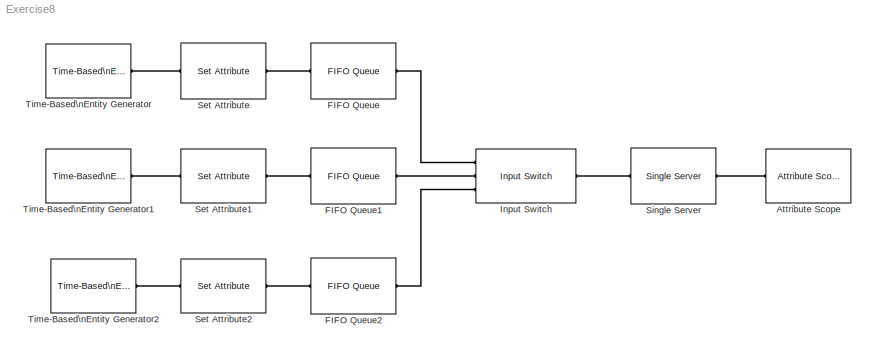
MODEL Exercise8
KIND model
BLOCK [Reference] Attribute Scope  REF=simeventssink1/Attribute Scope
  AttributeNameX = Count
  AttributeNameY = Type
  AxisGrid = on
  AxisLegend = off
  AxisZoom = off
  DataPointsLimit = 10000
  DataStoreOption = Limited
  EnableEntityOutport = off
  FigurePosition = des_figposition([5 25 25 25])
  FunctionWithSeparateData = off
  InputType = Attribute
  LineColors = b
  LineMarkers = o
  LineStyles = -
  NumInputs = 1
  OpenScopeAtSimStart = on
  PlotType = Stem
  Ports = [0, 0, 0, 0, 0, 1]
  Priority = 1
  RTWMemSecDataConstants = Inherit from model
  RTWMemSecDataInternal = Inherit from model
  RTWMemSecDataParameters = Inherit from model
  RTWMemSecFuncExecute = Inherit from model
  RTWMemSecFuncInitTerm = Inherit from model
  ShowCountPlotted = off
  ShowPortLabels = FromPortIcon
  ShowToolbar = on
  SourceBlock = simeventssink1/Attribute Scope
  SourceType = Attribute Scope
  StatNumberArrived = Off
  SystemSampleTime = -1
  Title = Types of Entities Departing from Server
  UserData = DataTag0
  UserDataPersistent = on
  XInputOptionEntity = Event time
  XInputOptionSignal = Event time
  XLabel = Time
  XLimitExceededOption = Stretch axis limits
  XMax = 10
  XMin = 0
  YLabel = Type
  YLimitExceededOption = Stretch axis limits
  YMax = 10
  YMin = 0
BLOCK [Reference] FIFO Queue  REF=simeventsqueue1/FIFO Queue
  Capacity = 25
  EnableTOPort = off
  FunctionWithSeparateData = off
  Ports = [0, 0, 0, 0, 0, 1, 1]
  Priority = 1
  RTWMemSecDataConstants = Inherit from model
  RTWMemSecDataInternal = Inherit from model
  RTWMemSecDataParameters = Inherit from model
  RTWMemSecFuncExecute = Inherit from model
  RTWMemSecFuncInitTerm = Inherit from model
  ShowPortLabels = FromPortIcon
  SourceBlock = simeventsqueue1/FIFO Queue
  SourceType = FIFO Queue
  StatAverageQueueLength = Off
  StatAverageWait = Off
  StatNumberDeparted = Off
  StatNumberInBlock = Off
  StatNumberTimedout = Off
  StatPendingEntity = Off
  SystemSampleTime = -1
  UserData = DataTag1
  UserDataPersistent = on
BLOCK [Reference] FIFO Queue1  REF=simeventsqueue1/FIFO Queue
  Capacity = 25
  EnableTOPort = off
  FunctionWithSeparateData = off
  Ports = [0, 0, 0, 0, 0, 1, 1]
  Priority = 1
  RTWMemSecDataConstants = Inherit from model
  RTWMemSecDataInternal = Inherit from model
  RTWMemSecDataParameters = Inherit from model
  RTWMemSecFuncExecute = Inherit from model
  RTWMemSecFuncInitTerm = Inherit from model
  ShowPortLabels = FromPortIcon
  SourceBlock = simeventsqueue1/FIFO Queue
  SourceType = FIFO Queue
  StatAverageQueueLength = Off
  StatAverageWait = Off
  StatNumberDeparted = Off
  StatNumberInBlock = Off
  StatNumberTimedout = Off
  StatPendingEntity = Off
  SystemSampleTime = -1
  UserData = DataTag2
  UserDataPersistent = on
BLOCK [Reference] FIFO Queue2  REF=simeventsqueue1/FIFO Queue
  Capacity = 25
  EnableTOPort = off
  FunctionWithSeparateData = off
  Ports = [0, 0, 0, 0, 0, 1, 1]
  Priority = 1
  RTWMemSecDataConstants = Inherit from model
  RTWMemSecDataInternal = Inherit from model
  RTWMemSecDataParameters = Inherit from model
  RTWMemSecFuncExecute = Inherit from model
  RTWMemSecFuncInitTerm = Inherit from model
  ShowPortLabels = FromPortIcon
  SourceBlock = simeventsqueue1/FIFO Queue
  SourceType = FIFO Queue
  StatAverageQueueLength = Off
  StatAverageWait = Off
  StatNumberDeparted = Off
  StatNumberInBlock = Off
  StatNumberTimedout = Off
  StatPendingEntity = Off
  SystemSampleTime = -1
  UserData = DataTag3
  UserDataPersistent = on
BLOCK [Reference] Input Switch  REF=simeventsrouting1/Input Switch
  EvaluatedNumPorts = 3
  FunctionWithSeparateData = off
  InitialSeed = 23453
  NumberInputPorts = 3
  Ports = [0, 0, 0, 0, 0, 3, 1]
  Priority = 1
  PriorityInputSwitchSelectPort = 4000
  RTWMemSecDataConstants = Inherit from model
  RTWMemSecDataInternal = Inherit from model
  RTWMemSecDataParameters = Inherit from model
  RTWMemSecFuncExecute = Inherit from model
  RTWMemSecFuncInitTerm = Inherit from model
  ShowPortLabels = FromPortIcon
  SourceBlock = simeventsrouting1/Input Switch
  SourceType = Input Switch
  SpecifyEventPriority = off
  StatLastArrivalPort = Off
  StatNumberDeparted = Off
  SwitchingCriterion = Round robin
  SystemSampleTime = -1
  UserData = DataTag4
  UserDataPersistent = on
BLOCK [Reference] Set Attribute  REF=simeventsattributes2/Set Attribute
  AttributeCreate = on
  AttributeFrom = Dialog
  AttributeName = Type
  AttributeTreatAsVector = 1
  AttributeValue = 1
  DialogController = des_ddg_create
  DialogControllerArgs = DataTag6
  EvaluatedAttributeValue = {1}
  FunctionWithSeparateData = off
  Ports = [0, 0, 0, 0, 0, 1, 1]
  Priority = 1
  RTWMemSecDataConstants = Inherit from model
  RTWMemSecDataInternal = Inherit from model
  RTWMemSecDataParameters = Inherit from model
  RTWMemSecFuncExecute = Inherit from model
  RTWMemSecFuncInitTerm = Inherit from model
  ShowPortLabels = FromPortIcon
  SourceBlock = simeventsattributes2/Set Attribute
  SourceType = Set Attribute
  StatNumberDeparted = Off
  SystemSampleTime = -1
  UserData = DataTag5
  UserDataPersistent = on
BLOCK [Reference] Set Attribute1  REF=simeventsattributes2/Set Attribute
  AttributeCreate = on
  AttributeFrom = Dialog
  AttributeName = Type
  AttributeTreatAsVector = 1
  AttributeValue = 2
  DialogController = des_ddg_create
  DialogControllerArgs = DataTag8
  EvaluatedAttributeValue = {2}
  FunctionWithSeparateData = off
  Ports = [0, 0, 0, 0, 0, 1, 1]
  Priority = 1
  RTWMemSecDataConstants = Inherit from model
  RTWMemSecDataInternal = Inherit from model
  RTWMemSecDataParameters = Inherit from model
  RTWMemSecFuncExecute = Inherit from model
  RTWMemSecFuncInitTerm = Inherit from model
  ShowPortLabels = FromPortIcon
  SourceBlock = simeventsattributes2/Set Attribute
  SourceType = Set Attribute
  StatNumberDeparted = Off
  SystemSampleTime = -1
  UserData = DataTag7
  UserDataPersistent = on
BLOCK [Reference] Set Attribute2  REF=simeventsattributes2/Set Attribute
  AttributeCreate = on
  AttributeFrom = Dialog
  AttributeName = Type
  AttributeTreatAsVector = 1
  AttributeValue = 3
  DialogController = des_ddg_create
  DialogControllerArgs = DataTag10
  EvaluatedAttributeValue = {3}
  FunctionWithSeparateData = off
  Ports = [0, 0, 0, 0, 0, 1, 1]
  Priority = 1
  RTWMemSecDataConstants = Inherit from model
  RTWMemSecDataInternal = Inherit from model
  RTWMemSecDataParameters = Inherit from model
  RTWMemSecFuncExecute = Inherit from model
  RTWMemSecFuncInitTerm = Inherit from model
  ShowPortLabels = FromPortIcon
  SourceBlock = simeventsattributes2/Set Attribute
  SourceType = Set Attribute
  StatNumberDeparted = Off
  SystemSampleTime = -1
  UserData = DataTag9
  UserDataPersistent = on
BLOCK [Reference] Single Server  REF=simeventsserver1/Single Server
  AttributeName = ServiceTime
  CreateAttribute = on
  EnableTOPort = off
  FunctionWithSeparateData = off
  PermitPreemption = off
  Ports = [0, 0, 0, 0, 0, 1, 1]
  Priority = 1
  PriorityServiceCompletion = 500
  RTWMemSecDataConstants = Inherit from model
  RTWMemSecDataInternal = Inherit from model
  RTWMemSecDataParameters = Inherit from model
  RTWMemSecFuncExecute = Inherit from model
  RTWMemSecFuncInitTerm = Inherit from model
  ResidualAttributeName = ResidualServiceTime
  ServiceTime = 1
  ServiceTimeFrom = Dialog
  ShowPortLabels = FromPortIcon
  SortingAttributeName = PriorityAttributeName
  SortingDirection = Ascending
  SourceBlock = simeventsserver1/Single Server
  SourceType = Single Server
  StatAverageWait = Off
  StatNumberDeparted = Off
  StatNumberInBlock = Off
  StatNumberPreempted = Off
  StatNumberTimedout = Off
  StatPendingEntity = Off
  StatUtilization = Off
  SystemSampleTime = -1
  UserData = DataTag11
  UserDataPersistent = on
  WriteToAttribute = off
BLOCK [Reference] Time-Based\nEntity Generator  REF=simeventsgenerators1/Entity Generators/Time-Based\nEntity Generator
  DialogController = des_ddg_create
  DialogControllerArgs = DataTag13
  Distribution = Uniform
  EntityType = Blank
  FunctionWithSeparateData = off
  GenerateEntitiesUpon = Intergeneration time from dialog
  GenerateEntityAtSimulationStart = on
  InitialSeed = 12345
  Maximum = 2
  Mean = 1
  Minimum = 1
  Period = 1
  Ports = [0, 0, 0, 0, 0, 0, 1]
  Priority = 1
  PriorityEntityGeneration = 300
  RTWMemSecDataConstants = Inherit from model
  RTWMemSecDataInternal = Inherit from model
  RTWMemSecDataParameters = Inherit from model
  RTWMemSecFuncExecute = Inherit from model
  RTWMemSecFuncInitTerm = Inherit from model
  ResponseWhenBlocked = Pause generation
  ResponseWhenUnblocked = Immediate restart
  ShowPortLabels = FromPortIcon
  SourceBlock = simeventsgenerators1/Entity Generators/Time-Based\nEntity Generator
  SourceType = Time-Based Entity Generator
  StatAverageIntergenerationTime = Off
  StatNumberDeparted = Off
  StatPendingEntity = Off
  SystemSampleTime = -1
  UserData = DataTag12
  UserDataPersistent = on
BLOCK [Reference] Time-Based\nEntity Generator1  REF=simeventsgenerators1/Entity Generators/Time-Based\nEntity Generator
  DialogController = des_ddg_create
  DialogControllerArgs = DataTag15
  Distribution = Uniform
  EntityType = Blank
  FunctionWithSeparateData = off
  GenerateEntitiesUpon = Intergeneration time from dialog
  GenerateEntityAtSimulationStart = on
  InitialSeed = 12345
  Maximum = 2
  Mean = 1
  Minimum = 1
  Period = 2
  Ports = [0, 0, 0, 0, 0, 0, 1]
  Priority = 1
  PriorityEntityGeneration = 300
  RTWMemSecDataConstants = Inherit from model
  RTWMemSecDataInternal = Inherit from model
  RTWMemSecDataParameters = Inherit from model
  RTWMemSecFuncExecute = Inherit from model
  RTWMemSecFuncInitTerm = Inherit from model
  ResponseWhenBlocked = Pause generation
  ResponseWhenUnblocked = Immediate restart
  ShowPortLabels = FromPortIcon
  SourceBlock = simeventsgenerators1/Entity Generators/Time-Based\nEntity Generator
  SourceType = Time-Based Entity Generator
  StatAverageIntergenerationTime = Off
  StatNumberDeparted = Off
  StatPendingEntity = Off
  SystemSampleTime = -1
  UserData = DataTag14
  UserDataPersistent = on
BLOCK [Reference] Time-Based\nEntity Generator2  REF=simeventsgenerators1/Entity Generators/Time-Based\nEntity Generator
  DialogController = des_ddg_create
  DialogControllerArgs = DataTag17
  Distribution = Uniform
  EntityType = Blank
  FunctionWithSeparateData = off
  GenerateEntitiesUpon = Intergeneration time from dialog
  GenerateEntityAtSimulationStart = on
  InitialSeed = 12345
  Maximum = 3
  Mean = 1
  Minimum = 1
  Period = 3
  Ports = [0, 0, 0, 0, 0, 0, 1]
  Priority = 1
  PriorityEntityGeneration = 300
  RTWMemSecDataConstants = Inherit from model
  RTWMemSecDataInternal = Inherit from model
  RTWMemSecDataParameters = Inherit from model
  RTWMemSecFuncExecute = Inherit from model
  RTWMemSecFuncInitTerm = Inherit from model
  ResponseWhenBlocked = Pause generation
  ResponseWhenUnblocked = Immediate restart
  ShowPortLabels = FromPortIcon
  SourceBlock = simeventsgenerators1/Entity Generators/Time-Based\nEntity Generator
  SourceType = Time-Based Entity Generator
  StatAverageIntergenerationTime = Off
  StatNumberDeparted = Off
  StatPendingEntity = Off
  SystemSampleTime = -1
  UserData = DataTag16
  UserDataPersistent = on
PLINE Attribute Scope:LConn1 -- Single Server:RConn1
PLINE FIFO Queue1:LConn1 -- Set Attribute1:RConn1
PLINE FIFO Queue1:RConn1 -- Input Switch:LConn2
PLINE FIFO Queue2:LConn1 -- Set Attribute2:RConn1
PLINE FIFO Queue2:RConn1 -- Input Switch:LConn3
PLINE FIFO Queue:LConn1 -- Set Attribute:RConn1
PLINE FIFO Queue:RConn1 -- Input Switch:LConn1
PLINE Input Switch:RConn1 -- Single Server:LConn1
PLINE Set Attribute1:LConn1 -- Time-Based\nEntity Generator1:RConn1
PLINE Set Attribute2:LConn1 -- Time-Based\nEntity Generator2:RConn1
PLINE Set Attribute:LConn1 -- Time-Based\nEntity Generator:RConn1
